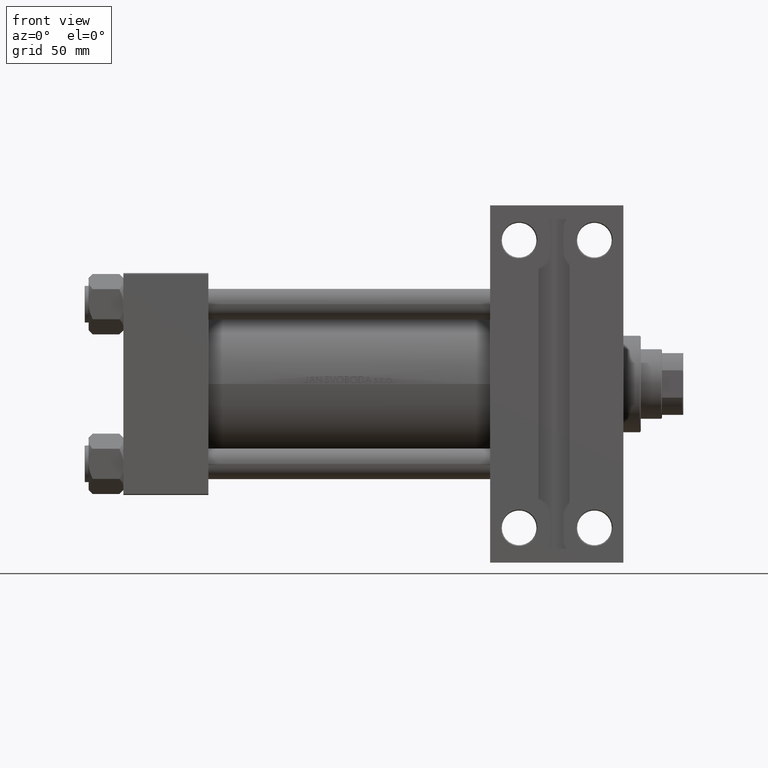
[diagram: clean part render]
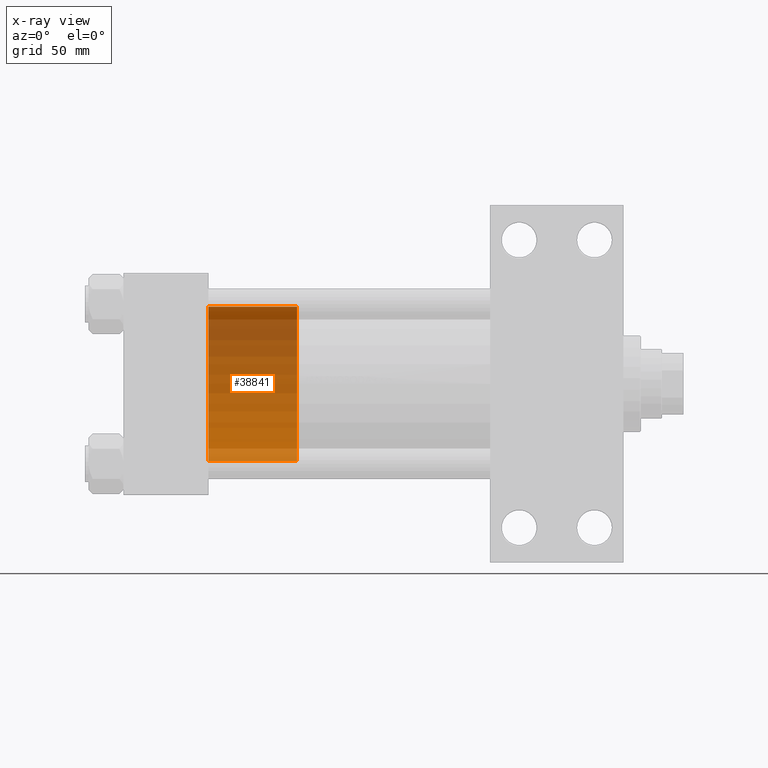
[diagram: x-ray — body ghosted, one internal face saturated and labeled with its STEP entity id]
A machine part, front view, then the same camera in x-ray: the body is ghosted and one INTERNAL B-rep face — a face not visible from any outside direction — is saturated and labeled: STEP entity #38841.
In plain terms, the highlighted cylindrical surface (partial cylindrical patch) has radius 40 mm, axis along (-1, 0, 0).
Its self-contained STEP definition (entity closure, byte-faithful):
#197 = DIRECTION ( 'NONE',  ( -0.000000000000000000, -0.000000000000000000, -1.000000000000000000 ) ) ;
#2145 = EDGE_CURVE ( 'NONE', #25966, #16326, #32197, .T. ) ;
#3349 = CARTESIAN_POINT ( 'NONE',  ( -40.00000000000000000, 0.000000000000000000, 46.00000000000000000 ) ) ;
#3709 = EDGE_CURVE ( 'NONE', #16326, #14646, #7734, .T. ) ;
#5794 = AXIS2_PLACEMENT_3D ( 'NONE', #29774, #36353, #25880 ) ;
#5885 = CARTESIAN_POINT ( 'NONE',  ( -40.00000000000000000, 0.000000000000000000, 0.000000000000000000 ) ) ;
#6574 = ORIENTED_EDGE ( 'NONE', *, *, #2145, .F. ) ;
#6912 = DIRECTION ( 'NONE',  ( 0.000000000000000000, 0.000000000000000000, 1.000000000000000000 ) ) ;
#7237 = DIRECTION ( 'NONE',  ( -0.000000000000000000, -0.000000000000000000, -1.000000000000000000 ) ) ;
#7708 = CARTESIAN_POINT ( 'NONE',  ( -40.00000000000000000, 0.000000000000000000, 46.00000000000000000 ) ) ;
#7734 = LINE ( 'NONE', #33547, #19775 ) ;
#13090 = VERTEX_POINT ( 'NONE', #5885 ) ;
#13410 = CYLINDRICAL_SURFACE ( 'NONE', #14781, 40.00000000000000000 ) ;
#14646 = VERTEX_POINT ( 'NONE', #26496 ) ;
#14781 = AXIS2_PLACEMENT_3D ( 'NONE', #46495, #46740, #38490 ) ;
#14785 = EDGE_CURVE ( 'NONE', #13090, #14646, #24849, .T. ) ;
#16326 = VERTEX_POINT ( 'NONE', #27534 ) ;
#17071 = AXIS2_PLACEMENT_3D ( 'NONE', #40252, #6912, #21765 ) ;
#17700 = EDGE_LOOP ( 'NONE', ( #33810, #6574, #42222, #19888 ) ) ;
#19775 = VECTOR ( 'NONE', #197, 1000.000000000000000 ) ;
#19888 = ORIENTED_EDGE ( 'NONE', *, *, #14785, .T. ) ;
#21765 = DIRECTION ( 'NONE',  ( 1.000000000000000000, 0.000000000000000000, 0.000000000000000000 ) ) ;
#24849 = CIRCLE ( 'NONE', #17071, 40.00000000000000000 ) ;
#25125 = EDGE_CURVE ( 'NONE', #25966, #13090, #33754, .T. ) ;
#25880 = DIRECTION ( 'NONE',  ( 1.000000000000000000, 0.000000000000000000, 0.000000000000000000 ) ) ;
#25966 = VERTEX_POINT ( 'NONE', #3349 ) ;
#26496 = CARTESIAN_POINT ( 'NONE',  ( 40.00000000000000000, 4.898587196589413026E-15, 0.000000000000000000 ) ) ;
#27534 = CARTESIAN_POINT ( 'NONE',  ( 40.00000000000000000, 4.898587196589413026E-15, 46.00000000000000000 ) ) ;
#29774 = CARTESIAN_POINT ( 'NONE',  ( 0.000000000000000000, 0.000000000000000000, 46.00000000000000000 ) ) ;
#32197 = CIRCLE ( 'NONE', #5794, 40.00000000000000000 ) ;
#33547 = CARTESIAN_POINT ( 'NONE',  ( 40.00000000000000000, 4.898587196589413026E-15, 46.00000000000000000 ) ) ;
#33754 = LINE ( 'NONE', #7708, #42430 ) ;
#33810 = ORIENTED_EDGE ( 'NONE', *, *, #3709, .F. ) ;
#36353 = DIRECTION ( 'NONE',  ( 0.000000000000000000, 0.000000000000000000, 1.000000000000000000 ) ) ;
#38490 = DIRECTION ( 'NONE',  ( -1.000000000000000000, 0.000000000000000000, 0.000000000000000000 ) ) ;
#38841 = ADVANCED_FACE ( 'NONE', ( #43085 ), #13410, .T. ) ;
#40252 = CARTESIAN_POINT ( 'NONE',  ( 0.000000000000000000, 0.000000000000000000, 0.000000000000000000 ) ) ;
#42222 = ORIENTED_EDGE ( 'NONE', *, *, #25125, .T. ) ;
#42430 = VECTOR ( 'NONE', #7237, 1000.000000000000000 ) ;
#43085 = FACE_OUTER_BOUND ( 'NONE', #17700, .T. ) ;
#46495 = CARTESIAN_POINT ( 'NONE',  ( 0.000000000000000000, 0.000000000000000000, 46.00000000000000000 ) ) ;
#46740 = DIRECTION ( 'NONE',  ( -0.000000000000000000, -0.000000000000000000, -1.000000000000000000 ) ) ;